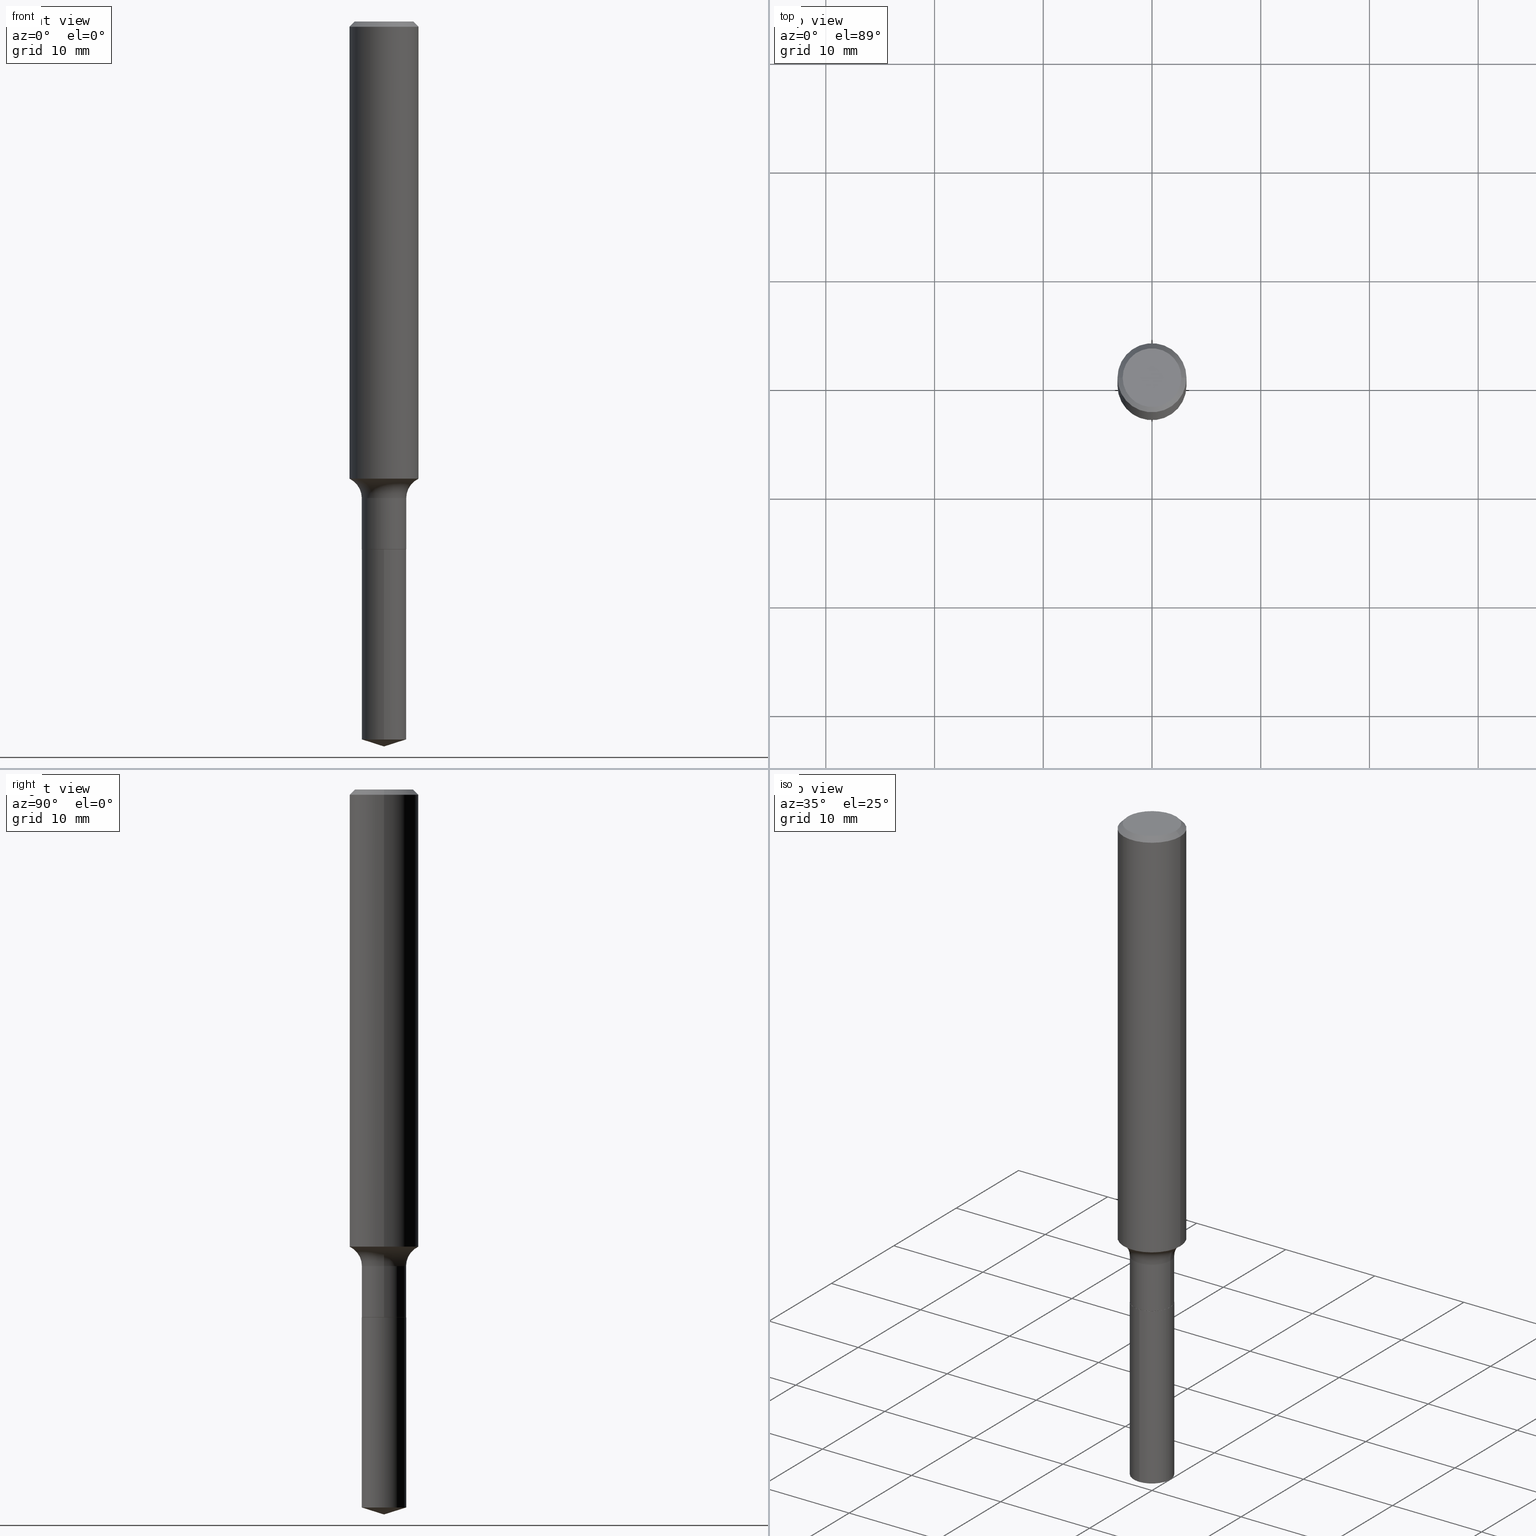
[diagram: canonical four-view strip — front | top / right | iso, engineering-drawing reading convention]
A machine part, canonical four-view strip (front | top / right | iso — engineering-drawing reading convention). The complete STEP part file that produces these views, byte-faithful:
ISO-10303-21;
HEADER;
FILE_DESCRIPTION (( 'STEP AP203' ),
    '1' );
FILE_NAME ('51279.STEP',
    '2024-04-19T12:47:51',
    ( '' ),
    ( '' ),
    'SwSTEP 2.0',
    'SolidWorks 2023',
    '' );
FILE_SCHEMA (( 'CONFIG_CONTROL_DESIGN' ));
ENDSEC;

DATA;
#1 = CARTESIAN_POINT ( 'NONE',  ( 4.673290888619796010E-29, -6.672220838529250908E-15, -1.910999999999999810 ) ) ;
#2 = CC_DESIGN_DATE_AND_TIME_ASSIGNMENT ( #225, #372, ( #159 ) ) ;
#3 = CIRCLE ( 'NONE', #288, 0.08050000000000000211 ) ;
#4 = AXIS2_PLACEMENT_3D ( 'NONE', #128, #276, #400 ) ;
#5 = LINE ( 'NONE', #7, #77 ) ;
#6 = ORIENTED_EDGE ( 'NONE', *, *, #418, .T. ) ;
#7 = CARTESIAN_POINT ( 'NONE',  ( 0.08000000000000000167, -7.230857852744151772E-15, -1.910999999999999810 ) ) ;
#8 = FACE_OUTER_BOUND ( 'NONE', #374, .T. ) ;
#9 = VERTEX_POINT ( 'NONE', #257 ) ;
#10 = AXIS2_PLACEMENT_3D ( 'NONE', #445, #409, #370 ) ;
#11 = CYLINDRICAL_SURFACE ( 'NONE', #298, 0.08050000000000000211 ) ;
#12 = EDGE_CURVE ( 'NONE', #9, #392, #176, .T. ) ;
#13 = CIRCLE ( 'NONE', #57, 0.07800000000000002764 ) ;
#14 = EDGE_LOOP ( 'NONE', ( #23, #61, #59, #177 ) ) ;
#15 = DIRECTION ( 'NONE',  ( -2.445468806185136877E-29, 3.491481338843145188E-15, 1.000000000000000000 ) ) ;
#16 = EDGE_CURVE ( 'NONE', #127, #90, #35, .T. ) ;
#17 = CARTESIAN_POINT ( 'NONE',  ( 4.673290888619796010E-29, -6.672220838529250908E-15, -1.910999999999999810 ) ) ;
#18 = EDGE_CURVE ( 'NONE', #340, #206, #194, .T. ) ;
#19 = FACE_OUTER_BOUND ( 'NONE', #173, .T. ) ;
#20 = AXIS2_PLACEMENT_3D ( 'NONE', #78, #153, #463 ) ;
#21 = ORIENTED_EDGE ( 'NONE', *, *, #426, .T. ) ;
#22 = DIRECTION ( 'NONE',  ( 1.000000000000000000, -6.982962677686266711E-15, 0.000000000000000000 ) ) ;
#23 = ORIENTED_EDGE ( 'NONE', *, *, #218, .T. ) ;
#24 = DIRECTION ( 'NONE',  ( -2.445468806185136877E-29, 3.491481338843145188E-15, 1.000000000000000000 ) ) ;
#25 = ORIENTED_EDGE ( 'NONE', *, *, #341, .T. ) ;
#26 = DIRECTION ( 'NONE',  ( -2.445468806185136597E-29, 3.491481338843145583E-15, 1.000000000000000000 ) ) ;
#27 = EDGE_LOOP ( 'NONE', ( #345, #63, #118, #252 ) ) ;
#28 = AXIS2_PLACEMENT_3D ( 'NONE', #261, #417, #301 ) ;
#29 = DATE_AND_TIME ( #62, #152 ) ;
#30 = ORIENTED_EDGE ( 'NONE', *, *, #182, .F. ) ;
#31 = APPROVAL_STATUS ( 'not_yet_approved' ) ;
#32 = DIRECTION ( 'NONE',  ( -0.7071067811866078578, 7.493145998870571886E-15, 0.7071067811864871766 ) ) ;
#33 = EDGE_CURVE ( 'NONE', #401, #440, #328, .T. ) ;
#34 = CARTESIAN_POINT ( 'NONE',  ( 4.673290888619796010E-29, -6.672220838529250908E-15, -1.910999999999999810 ) ) ;
#35 = CIRCLE ( 'NONE', #434, 0.08049999999999998823 ) ;
#36 = CIRCLE ( 'NONE', #255, 0.1250000000000000000 ) ;
#37 = MECHANICAL_CONTEXT ( 'NONE', #368, 'mechanical' ) ;
#38 = CARTESIAN_POINT ( 'NONE',  ( 4.673290888619796010E-29, -6.672220838529250908E-15, -1.910999999999999810 ) ) ;
#39 = PERSON_AND_ORGANIZATION ( #131, #312 ) ;
#40 = ORIENTED_EDGE ( 'NONE', *, *, #41, .T. ) ;
#41 = EDGE_CURVE ( 'NONE', #440, #401, #192, .T. ) ;
#42 = DIRECTION ( 'NONE',  ( 0.7071067811865450192, -7.319954787623246579E-15, -0.7071067811865500152 ) ) ;
#43 = ADVANCED_FACE ( 'NONE', ( #254 ), #469, .T. ) ;
#44 = VECTOR ( 'NONE', #42, 39.37007874015748143 ) ;
#45 = LINE ( 'NONE', #383, #208 ) ;
#46 = CARTESIAN_POINT ( 'NONE',  ( 4.672068154216703208E-29, -6.670475097859829405E-15, -1.910500000000000087 ) ) ;
#47 = CARTESIAN_POINT ( 'NONE',  ( 0.08000000000000000167, -7.230857852744151772E-15, -1.910999999999999810 ) ) ;
#48 = CIRCLE ( 'NONE', #184, 0.1062499999999999972 ) ;
#49 = DIRECTION ( 'NONE',  ( -2.445468806185136597E-29, 3.491481338843145583E-15, 1.000000000000000000 ) ) ;
#50 = ORIENTED_EDGE ( 'NONE', *, *, #92, .T. ) ;
#51 = LINE ( 'NONE', #474, #273 ) ;
#52 = PRODUCT_RELATED_PRODUCT_CATEGORY ( 'detail', '', ( #367 ) ) ;
#53 = CARTESIAN_POINT ( 'NONE',  ( 4.673290888619796010E-29, -6.672220838529250908E-15, -1.910999999999999810 ) ) ;
#54 = ORIENTED_EDGE ( 'NONE', *, *, #16, .F. ) ;
#55 = DIRECTION ( 'NONE',  ( -2.445468806185136597E-29, 3.491481338843145583E-15, 1.000000000000000000 ) ) ;
#56 = VERTEX_POINT ( 'NONE', #376 ) ;
#57 = AXIS2_PLACEMENT_3D ( 'NONE', #313, #472, #351 ) ;
#58 = DIRECTION ( 'NONE',  ( -2.445468806185136597E-29, 3.491481338843145583E-15, 1.000000000000000000 ) ) ;
#59 = ORIENTED_EDGE ( 'NONE', *, *, #12, .F. ) ;
#60 = DIRECTION ( 'NONE',  ( 1.000000000000000000, -6.982962677686259611E-15, 0.000000000000000000 ) ) ;
#61 = ORIENTED_EDGE ( 'NONE', *, *, #270, .T. ) ;
#62 = CALENDAR_DATE ( 2024, 19, 4 ) ;
#63 = ORIENTED_EDGE ( 'NONE', *, *, #16, .T. ) ;
#64 = AXIS2_PLACEMENT_3D ( 'NONE', #278, #58, #317 ) ;
#65 = PERSON_AND_ORGANIZATION_ROLE ( 'classification_officer' ) ;
#66 = LINE ( 'NONE', #333, #44 ) ;
#67 = APPROVAL_ROLE ( '' ) ;
#68 = DIRECTION ( 'NONE',  ( -6.982962677686266711E-15, -1.000000000000000000, 3.393599992129519526E-15 ) ) ;
#69 = PERSON_AND_ORGANIZATION ( #131, #312 ) ;
#70 = DIRECTION ( 'NONE',  ( 1.000000000000000000, -6.982962677686259611E-15, 0.000000000000000000 ) ) ;
#71 = AXIS2_PLACEMENT_3D ( 'NONE', #46, #198, #348 ) ;
#72 = APPROVAL_PERSON_ORGANIZATION ( #455, #109, #490 ) ;
#73 = DIRECTION ( 'NONE',  ( 1.000000000000000000, -6.982962677686267499E-15, 0.000000000000000000 ) ) ;
#74 = ADVANCED_FACE ( 'NONE', ( #287 ), #263, .T. ) ;
#75 = DIRECTION ( 'NONE',  ( -2.445468806185136597E-29, 3.491481338843145583E-15, 1.000000000000000000 ) ) ;
#76 = CARTESIAN_POINT ( 'NONE',  ( 4.220390065714308775E-29, -6.025598494575499954E-15, -1.725800000000000001 ) ) ;
#77 = VECTOR ( 'NONE', #343, 39.37007874015748143 ) ;
#78 = CARTESIAN_POINT ( 'NONE',  ( 4.585254011597163874E-31, -6.546527510330944066E-17, -0.01875000000000013461 ) ) ;
#79 = ORIENTED_EDGE ( 'NONE', *, *, #98, .F. ) ;
#80 = DIRECTION ( 'NONE',  ( -6.982962677686266711E-15, -1.000000000000000000, 3.393599992129519526E-15 ) ) ;
#81 = DIRECTION ( 'NONE',  ( -2.444714620977216866E-29, 3.492561374986442879E-15, 1.000000000000000000 ) ) ;
#82 = ADVANCED_FACE ( 'NONE', ( #335 ), #133, .T. ) ;
#83 = CARTESIAN_POINT ( 'NONE',  ( 4.673290888619796010E-29, -6.672220838529250908E-15, -1.910999999999999810 ) ) ;
#84 = CARTESIAN_POINT ( 'NONE',  ( -0.1062499999999999972, 7.746724220558198188E-16, 6.505936120465012444E-18 ) ) ;
#85 = ORIENTED_EDGE ( 'NONE', *, *, #453, .F. ) ;
#86 = ORIENTED_EDGE ( 'NONE', *, *, #250, .F. ) ;
#87 = EDGE_CURVE ( 'NONE', #111, #179, #166, .T. ) ;
#88 = DIRECTION ( 'NONE',  ( 1.000000000000000000, -6.982962677686266711E-15, 4.876176775795935232E-29 ) ) ;
#89 = CONICAL_SURFACE ( 'NONE', #387, 0.1250000000000000000, 0.7853981633974447263 ) ;
#90 = VERTEX_POINT ( 'NONE', #457 ) ;
#91 = VECTOR ( 'NONE', #274, 39.37007874015748143 ) ;
#92 = EDGE_CURVE ( 'NONE', #431, #134, #48, .T. ) ;
#93 = DIRECTION ( 'NONE',  ( -1.000000000000000000, 6.982962677686265922E-15, -4.876176775795935793E-29 ) ) ;
#94 = ORIENTED_EDGE ( 'NONE', *, *, #163, .F. ) ;
#95 = CARTESIAN_POINT ( 'NONE',  ( 6.420283652016083356E-29, -9.163845711199730413E-15, -2.625000000000000000 ) ) ;
#96 = ORIENTED_EDGE ( 'NONE', *, *, #129, .T. ) ;
#97 = COORDINATED_UNIVERSAL_TIME_OFFSET ( 5, 0, .BEHIND. ) ;
#98 = EDGE_CURVE ( 'NONE', #56, #480, #377, .T. ) ;
#99 = CARTESIAN_POINT ( 'NONE',  ( -0.1250000000000002498, -4.891481209924620531E-15, -1.655360309483927761 ) ) ;
#100 = AXIS2_PLACEMENT_3D ( 'NONE', #1, #188, #483 ) ;
#101 = CC_DESIGN_APPROVAL ( #109, ( #430 ) ) ;
#102 = CARTESIAN_POINT ( 'NONE',  ( 4.672068154216703208E-29, -6.670475097859829405E-15, -1.910500000000000087 ) ) ;
#103 = COORDINATED_UNIVERSAL_TIME_OFFSET ( 5, 0, .BEHIND. ) ;
#104 = CARTESIAN_POINT ( 'NONE',  ( -0.08000000000000000167, -6.103786649921171044E-15, -1.910999999999999810 ) ) ;
#105 = EDGE_CURVE ( 'NONE', #179, #111, #158, .T. ) ;
#106 = CARTESIAN_POINT ( 'NONE',  ( 0.000000000000000000, 0.000000000000000000, 0.000000000000000000 ) ) ;
#107 = CARTESIAN_POINT ( 'NONE',  ( -0.08049999999999998823, -5.776049893930784705E-15, -1.910500000000000087 ) ) ;
#108 = VECTOR ( 'NONE', #424, 39.37007874015748143 ) ;
#109 = APPROVAL ( #31, 'UNSPECIFIED' ) ;
#110 =( NAMED_UNIT ( * ) PLANE_ANGLE_UNIT ( ) SI_UNIT ( $, .RADIAN. ) );
#111 = VERTEX_POINT ( 'NONE', #99 ) ;
#112 = LINE ( 'NONE', #421, #338 ) ;
#113 = DIRECTION ( 'NONE',  ( 2.445468806185136597E-29, -3.491481338843145583E-15, -1.000000000000000000 ) ) ;
#114 = EDGE_CURVE ( 'NONE', #314, #480, #227, .T. ) ;
#115 = AXIS2_PLACEMENT_3D ( 'NONE', #230, #190, #70 ) ;
#116 =( GEOMETRIC_REPRESENTATION_CONTEXT ( 3 ) GLOBAL_UNCERTAINTY_ASSIGNED_CONTEXT ( ( #249 ) ) GLOBAL_UNIT_ASSIGNED_CONTEXT ( ( #365, #110, #450 ) ) REPRESENTATION_CONTEXT ( 'NONE', 'WORKASPACE' ) );
#117 = FACE_OUTER_BOUND ( 'NONE', #14, .T. ) ;
#118 = ORIENTED_EDGE ( 'NONE', *, *, #280, .T. ) ;
#119 = CARTESIAN_POINT ( 'NONE',  ( 4.585254011597163874E-31, -6.546527510330944066E-17, -0.01875000000000013461 ) ) ;
#120 = ORIENTED_EDGE ( 'NONE', *, *, #187, .F. ) ;
#121 = DIRECTION ( 'NONE',  ( 1.000000000000000000, -6.982962677686266711E-15, 4.875930095424100059E-29 ) ) ;
#122 = EDGE_CURVE ( 'NONE', #134, #303, #66, .T. ) ;
#123 = CLOSED_SHELL ( 'NONE', ( #74, #309, #390, #334, #325, #203, #231, #464, #149, #467, #385, #43 ) ) ;
#124 = CARTESIAN_POINT ( 'NONE',  ( 0.1250000000000001110, -8.728703347107841277E-16, 6.095220969744924646E-30 ) ) ;
#125 = ORIENTED_EDGE ( 'NONE', *, *, #163, .T. ) ;
#126 = CARTESIAN_POINT ( 'NONE',  ( 4.585254011597163874E-31, -6.546527510330944066E-17, -0.01875000000000013461 ) ) ;
#127 = VERTEX_POINT ( 'NONE', #107 ) ;
#128 = CARTESIAN_POINT ( 'NONE',  ( 4.220390065714308775E-29, -6.025598494575499954E-15, -1.725800000000000001 ) ) ;
#129 = EDGE_CURVE ( 'NONE', #340, #127, #449, .T. ) ;
#130 = EDGE_LOOP ( 'NONE', ( #473, #96, #248, #94 ) ) ;
#131 = PERSON ( 'UNSPECIFIED', 'UNSPECIFIED', 'UNSPECIFIED', ('UNSPECIFIED'), ('UNSPECIFIED'), ('UNSPECIFIED') ) ;
#132 = PLANE ( 'NONE',  #185 ) ;
#133 = CONICAL_SURFACE ( 'NONE', #217, 124.8659371009125749, 1.265363707695885909 ) ;
#134 = VERTEX_POINT ( 'NONE', #292 ) ;
#135 = AXIS2_PLACEMENT_3D ( 'NONE', #17, #164, #60 ) ;
#136 = ADVANCED_FACE ( 'NONE', ( #181 ), #327, .F. ) ;
#137 = LINE ( 'NONE', #175, #209 ) ;
#138 = ORIENTED_EDGE ( 'NONE', *, *, #12, .T. ) ;
#139 = EDGE_CURVE ( 'NONE', #431, #381, #232, .T. ) ;
#140 = DIRECTION ( 'NONE',  ( 1.000000000000000000, -6.982962677686267499E-15, 0.000000000000000000 ) ) ;
#141 = APPLICATION_PROTOCOL_DEFINITION ( 'international standard', 'config_control_design', 1994, #368 ) ;
#142 = DIRECTION ( 'NONE',  ( -2.445468806185136597E-29, 3.491481338843145583E-15, 1.000000000000000000 ) ) ;
#143 = TOROIDAL_SURFACE ( 'NONE', #444, 0.1584999999999999742, 0.07800000000000002764 ) ;
#144 = CIRCLE ( 'NONE', #135, 0.08000000000000000167 ) ;
#145 = DATE_AND_TIME ( #186, #291 ) ;
#146 = CARTESIAN_POINT ( 'NONE',  ( 4.048131999839919317E-29, -5.779659629624748130E-15, -1.655360309483927761 ) ) ;
#147 = APPROVAL_STATUS ( 'not_yet_approved' ) ;
#148 = DIRECTION ( 'NONE',  ( -2.445468806185136597E-29, 3.491481338843145583E-15, 1.000000000000000000 ) ) ;
#149 = ADVANCED_FACE ( 'NONE', ( #235 ), #89, .T. ) ;
#150 = ORIENTED_EDGE ( 'NONE', *, *, #18, .F. ) ;
#151 = CIRCLE ( 'NONE', #20, 0.1250000000000000000 ) ;
#152 = LOCAL_TIME ( 8, 47, 51.00000000000000000, #103 ) ;
#153 = DIRECTION ( 'NONE',  ( -2.445468806185136597E-29, 3.491481338843145583E-15, 1.000000000000000000 ) ) ;
#154 = ADVANCED_FACE ( 'NONE', ( #191 ), #262, .T. ) ;
#155 = DIRECTION ( 'NONE',  ( 2.445468806185136597E-29, -3.491481338843145583E-15, -1.000000000000000000 ) ) ;
#156 = DIRECTION ( 'NONE',  ( -2.445468806185136597E-29, 3.491481338843145583E-15, 1.000000000000000000 ) ) ;
#157 = ORIENTED_EDGE ( 'NONE', *, *, #438, .T. ) ;
#158 = CIRCLE ( 'NONE', #396, 0.1250000000000001943 ) ;
#159 = SECURITY_CLASSIFICATION ( '', '', #407 ) ;
#160 = CARTESIAN_POINT ( 'NONE',  ( 4.673290888619796010E-29, -6.672220838529250908E-15, -1.910999999999999810 ) ) ;
#161 = ORIENTED_EDGE ( 'NONE', *, *, #33, .T. ) ;
#162 = DIRECTION ( 'NONE',  ( -2.444714620977216866E-29, 3.492561374986442879E-15, 1.000000000000000000 ) ) ;
#163 = EDGE_CURVE ( 'NONE', #206, #90, #5, .T. ) ;
#164 = DIRECTION ( 'NONE',  ( -2.445468806185136597E-29, 3.491481338843145583E-15, 1.000000000000000000 ) ) ;
#165 = ORIENTED_EDGE ( 'NONE', *, *, #442, .F. ) ;
#166 = CIRCLE ( 'NONE', #10, 0.1250000000000001943 ) ;
#167 = APPLICATION_CONTEXT ( 'configuration controlled 3d designs of mechanical parts and assemblies' ) ;
#168 = DIRECTION ( 'NONE',  ( -2.445468806185136597E-29, 3.491481338843145583E-15, 1.000000000000000000 ) ) ;
#169 = ORIENTED_EDGE ( 'NONE', *, *, #442, .T. ) ;
#170 = DIRECTION ( 'NONE',  ( 1.000000000000000000, -6.982962677686267499E-15, 0.000000000000000000 ) ) ;
#171 = EDGE_LOOP ( 'NONE', ( #85, #277, #395 ) ) ;
#172 = LINE ( 'NONE', #95, #264 ) ;
#173 = EDGE_LOOP ( 'NONE', ( #165, #466, #404, #355 ) ) ;
#174 = CLOSED_SHELL ( 'NONE', ( #224, #246, #82, #154, #136 ) ) ;
#175 = CARTESIAN_POINT ( 'NONE',  ( -0.1250000000000001110, 8.881784197001260212E-16, -6.148668862818637832E-30 ) ) ;
#176 = CIRCLE ( 'NONE', #237, 0.08049999999999998823 ) ;
#177 = ORIENTED_EDGE ( 'NONE', *, *, #280, .F. ) ;
#178 = DIRECTION ( 'NONE',  ( 0.000000000000000000, 0.000000000000000000, 1.000000000000000000 ) ) ;
#179 = VERTEX_POINT ( 'NONE', #196 ) ;
#180 = PERSON_AND_ORGANIZATION ( #131, #312 ) ;
#181 = FACE_OUTER_BOUND ( 'NONE', #316, .T. ) ;
#182 = EDGE_CURVE ( 'NONE', #480, #401, #112, .T. ) ;
#183 = CARTESIAN_POINT ( 'NONE',  ( -8.982978999708975710E-28, 1.283365066777793659E-13, 36.74507874015748143 ) ) ;
#184 = AXIS2_PLACEMENT_3D ( 'NONE', #416, #75, #491 ) ;
#185 = AXIS2_PLACEMENT_3D ( 'NONE', #282, #436, #93 ) ;
#186 = CALENDAR_DATE ( 2024, 19, 4 ) ;
#187 = EDGE_CURVE ( 'NONE', #303, #381, #151, .T. ) ;
#188 = DIRECTION ( 'NONE',  ( -2.445468806185136597E-29, 3.491481338843145583E-15, 1.000000000000000000 ) ) ;
#189 = PERSON_AND_ORGANIZATION ( #131, #312 ) ;
#190 = DIRECTION ( 'NONE',  ( -2.445468806185136597E-29, 3.491481338843145583E-15, 1.000000000000000000 ) ) ;
#191 = FACE_OUTER_BOUND ( 'NONE', #347, .T. ) ;
#192 = CIRCLE ( 'NONE', #200, 0.08050000000000000211 ) ;
#193 = CC_DESIGN_PERSON_AND_ORGANIZATION_ASSIGNMENT ( #326, #484, ( #414 ) ) ;
#194 = CIRCLE ( 'NONE', #371, 0.08000000000000000167 ) ;
#195 = LOCAL_TIME ( 8, 47, 51.00000000000000000, #289 ) ;
#196 = CARTESIAN_POINT ( 'NONE',  ( 0.1250000000000002498, -6.652529964335533835E-15, -1.655360309483927761 ) ) ;
#197 = DIRECTION ( 'NONE',  ( 1.000000000000000000, -6.982962677686265133E-15, 4.883557194083112901E-29 ) ) ;
#198 = DIRECTION ( 'NONE',  ( -2.445468806185136597E-29, 3.491481338843145583E-15, 1.000000000000000000 ) ) ;
#199 = ORIENTED_EDGE ( 'NONE', *, *, #187, .T. ) ;
#200 = AXIS2_PLACEMENT_3D ( 'NONE', #34, #412, #68 ) ;
#201 = CIRCLE ( 'NONE', #487, 0.07800000000000002764 ) ;
#202 = FACE_OUTER_BOUND ( 'NONE', #27, .T. ) ;
#203 = ADVANCED_FACE ( 'NONE', ( #202 ), #268, .T. ) ;
#204 = DIRECTION ( 'NONE',  ( 1.000000000000000000, -6.982962677686265922E-15, 4.876176775795935793E-29 ) ) ;
#205 = CARTESIAN_POINT ( 'NONE',  ( -0.1584999999999999742, -4.899388258395741342E-15, -1.725800000000000001 ) ) ;
#206 = VERTEX_POINT ( 'NONE', #47 ) ;
#207 = ADVANCED_BREP_SHAPE_REPRESENTATION ( '51279', ( #447, #428, #471 ), #116 ) ;
#208 = VECTOR ( 'NONE', #15, 39.37007874015748143 ) ;
#209 = VECTOR ( 'NONE', #24, 39.37007874015748143 ) ;
#210 = FACE_OUTER_BOUND ( 'NONE', #241, .T. ) ;
#211 = ORIENTED_EDGE ( 'NONE', *, *, #438, .F. ) ;
#212 = DIRECTION ( 'NONE',  ( -2.445468806185136597E-29, 3.491481338843145583E-15, 1.000000000000000000 ) ) ;
#213 = ORIENTED_EDGE ( 'NONE', *, *, #413, .F. ) ;
#214 = CYLINDRICAL_SURFACE ( 'NONE', #456, 0.1250000000000001110 ) ;
#215 = ORIENTED_EDGE ( 'NONE', *, *, #122, .T. ) ;
#216 = LENGTH_MEASURE_WITH_UNIT ( LENGTH_MEASURE( 0.02539999999999999897 ), #488 );
#217 = AXIS2_PLACEMENT_3D ( 'NONE', #183, #331, #489 ) ;
#218 = EDGE_CURVE ( 'NONE', #90, #127, #311, .T. ) ;
#219 = EDGE_LOOP ( 'NONE', ( #410, #352, #125, #54 ) ) ;
#220 = CONICAL_SURFACE ( 'NONE', #362, 0.1250000000000000000, 0.7853981633974447263 ) ;
#221 = DIRECTION ( 'NONE',  ( -2.445468806185136597E-29, 3.491481338843145583E-15, 1.000000000000000000 ) ) ;
#222 = COORDINATED_UNIVERSAL_TIME_OFFSET ( 5, 0, .BEHIND. ) ;
#223 = ORIENTED_EDGE ( 'NONE', *, *, #41, .F. ) ;
#224 = ADVANCED_FACE ( 'NONE', ( #342 ), #11, .T. ) ;
#225 = DATE_AND_TIME ( #256, #195 ) ;
#226 = DIRECTION ( 'NONE',  ( -2.444714620977216866E-29, 3.492561374986442879E-15, 1.000000000000000000 ) ) ;
#227 = CIRCLE ( 'NONE', #353, 0.08050000000000000211 ) ;
#228 = CC_DESIGN_SECURITY_CLASSIFICATION ( #159, ( #414 ) ) ;
#229 = DIRECTION ( 'NONE',  ( 1.000000000000000000, -6.982962677686259611E-15, 0.000000000000000000 ) ) ;
#230 = CARTESIAN_POINT ( 'NONE',  ( 4.673290888619796010E-29, -6.672220838529250908E-15, -1.910999999999999810 ) ) ;
#231 = ADVANCED_FACE ( 'NONE', ( #461 ), #143, .F. ) ;
#232 = LINE ( 'NONE', #344, #108 ) ;
#233 = AXIS2_PLACEMENT_3D ( 'NONE', #423, #386, #300 ) ;
#234 = CARTESIAN_POINT ( 'NONE',  ( 6.356766475486046114E-29, -9.077263030354262990E-15, -2.599618447495241735 ) ) ;
#235 = FACE_OUTER_BOUND ( 'NONE', #360, .T. ) ;
#236 = DIRECTION ( 'NONE',  ( -6.982962677686266711E-15, -1.000000000000000000, 6.787199984259039052E-15 ) ) ;
#237 = AXIS2_PLACEMENT_3D ( 'NONE', #260, #415, #297 ) ;
#238 = LOCAL_TIME ( 8, 47, 51.00000000000000000, #97 ) ;
#239 = DIRECTION ( 'NONE',  ( -2.444714620977216866E-29, 3.492561374986442879E-15, 1.000000000000000000 ) ) ;
#240 = FACE_OUTER_BOUND ( 'NONE', #477, .T. ) ;
#241 = EDGE_LOOP ( 'NONE', ( #279, #364, #21, #211 ) ) ;
#242 = ORIENTED_EDGE ( 'NONE', *, *, #299, .T. ) ;
#243 = TOROIDAL_SURFACE ( 'NONE', #4, 0.1584999999999999742, 0.07800000000000002764 ) ;
#244 = DIRECTION ( 'NONE',  ( 1.000000000000000000, -6.982962677686266711E-15, 4.876176775795935232E-29 ) ) ;
#245 = ORIENTED_EDGE ( 'NONE', *, *, #139, .F. ) ;
#246 = ADVANCED_FACE ( 'NONE', ( #8 ), #272, .T. ) ;
#247 = CYLINDRICAL_SURFACE ( 'NONE', #305, 0.08049999999999998823 ) ;
#248 = ORIENTED_EDGE ( 'NONE', *, *, #218, .F. ) ;
#249 = UNCERTAINTY_MEASURE_WITH_UNIT (LENGTH_MEASURE( 1.000000000000000082E-05 ), #365, 'distance_accuracy_value', 'NONE');
#250 = EDGE_CURVE ( 'NONE', #480, #314, #3, .T. ) ;
#251 = DIRECTION ( 'NONE',  ( -2.438088387897960049E-29, 3.491481338843145188E-15, 1.000000000000000000 ) ) ;
#252 = ORIENTED_EDGE ( 'NONE', *, *, #426, .F. ) ;
#253 = DIRECTION ( 'NONE',  ( 1.000000000000000000, 0.000000000000000000, 0.000000000000000000 ) ) ;
#254 = FACE_OUTER_BOUND ( 'NONE', #219, .T. ) ;
#255 = AXIS2_PLACEMENT_3D ( 'NONE', #126, #26, #22 ) ;
#256 = CALENDAR_DATE ( 2024, 19, 4 ) ;
#257 = CARTESIAN_POINT ( 'NONE',  ( 0.08049999999999998823, -6.587726990129244613E-15, -1.725800000000000001 ) ) ;
#258 = CARTESIAN_POINT ( 'NONE',  ( 4.673290888619796010E-29, -6.672220838529250908E-15, -1.910999999999999810 ) ) ;
#259 = DIRECTION ( 'NONE',  ( 6.982962677686265922E-15, 1.000000000000000000, -3.492561374986442485E-15 ) ) ;
#260 = CARTESIAN_POINT ( 'NONE',  ( 4.220390065714308775E-29, -6.025598494575499954E-15, -1.725800000000000001 ) ) ;
#261 = CARTESIAN_POINT ( 'NONE',  ( 0.000000000000000000, 0.000000000000000000, 0.000000000000000000 ) ) ;
#262 = CYLINDRICAL_SURFACE ( 'NONE', #454, 0.08050000000000000211 ) ;
#263 = CONICAL_SURFACE ( 'NONE', #115, 0.08000000000000000167, 0.7853981633975336552 ) ;
#264 = VECTOR ( 'NONE', #432, 39.37007874015748143 ) ;
#265 = SHAPE_DEFINITION_REPRESENTATION ( #406, #207 ) ;
#266 = DIRECTION ( 'NONE',  ( -2.444714620977216866E-29, 3.492561374986442485E-15, 1.000000000000000000 ) ) ;
#267 = ORIENTED_EDGE ( 'NONE', *, *, #446, .F. ) ;
#268 = CYLINDRICAL_SURFACE ( 'NONE', #28, 0.08049999999999998823 ) ;
#269 = ORIENTED_EDGE ( 'NONE', *, *, #33, .F. ) ;
#270 = EDGE_CURVE ( 'NONE', #127, #392, #307, .T. ) ;
#271 = CARTESIAN_POINT ( 'NONE',  ( 4.585254011597163874E-31, -6.546527510330944066E-17, -0.01875000000000013461 ) ) ;
#272 = CONICAL_SURFACE ( 'NONE', #233, 124.8659371009125749, 1.265363707695885909 ) ;
#273 = VECTOR ( 'NONE', #359, 39.37007874015748143 ) ;
#274 = DIRECTION ( 'NONE',  ( -2.445468806185136877E-29, 3.491481338843145188E-15, 1.000000000000000000 ) ) ;
#275 = ORIENTED_EDGE ( 'NONE', *, *, #453, .T. ) ;
#276 = DIRECTION ( 'NONE',  ( -2.445468806185136597E-29, 3.491481338843145583E-15, 1.000000000000000000 ) ) ;
#277 = ORIENTED_EDGE ( 'NONE', *, *, #98, .T. ) ;
#278 = CARTESIAN_POINT ( 'NONE',  ( 0.000000000000000000, 0.000000000000000000, 0.000000000000000000 ) ) ;
#279 = ORIENTED_EDGE ( 'NONE', *, *, #87, .F. ) ;
#280 = EDGE_CURVE ( 'NONE', #90, #9, #45, .T. ) ;
#281 = AXIS2_PLACEMENT_3D ( 'NONE', #258, #452, #259 ) ;
#282 = CARTESIAN_POINT ( 'NONE',  ( -7.955031918821649840E-47, 1.135767727816383790E-32, 3.252968060235157457E-18 ) ) ;
#283 = EDGE_LOOP ( 'NONE', ( #427, #6, #269, #30 ) ) ;
#284 = CARTESIAN_POINT ( 'NONE',  ( 4.220390065714308775E-29, -6.025598494575499954E-15, -1.725800000000000001 ) ) ;
#285 = ORIENTED_EDGE ( 'NONE', *, *, #418, .F. ) ;
#286 = PERSON_AND_ORGANIZATION ( #131, #312 ) ;
#287 = FACE_OUTER_BOUND ( 'NONE', #130, .T. ) ;
#288 = AXIS2_PLACEMENT_3D ( 'NONE', #234, #239, #236 ) ;
#289 = COORDINATED_UNIVERSAL_TIME_OFFSET ( 5, 0, .BEHIND. ) ;
#290 = CC_DESIGN_PERSON_AND_ORGANIZATION_ASSIGNMENT ( #286, #411, ( #414 ) ) ;
#291 = LOCAL_TIME ( 8, 47, 51.00000000000000000, #222 ) ;
#292 = CARTESIAN_POINT ( 'NONE',  ( 0.1062499999999999972, -8.259777185439879685E-16, 6.505936120475796882E-18 ) ) ;
#293 = DATE_AND_TIME ( #402, #238 ) ;
#294 = CARTESIAN_POINT ( 'NONE',  ( 6.356766475486046114E-29, -9.077263030354262990E-15, -2.599618447495241735 ) ) ;
#295 = APPROVAL_ROLE ( '' ) ;
#296 = DIRECTION ( 'NONE',  ( -6.659769872151619467E-15, -0.9537169507482249342, 0.3007057995042792808 ) ) ;
#297 = DIRECTION ( 'NONE',  ( 1.000000000000000000, -6.982962677686267499E-15, 0.000000000000000000 ) ) ;
#298 = AXIS2_PLACEMENT_3D ( 'NONE', #160, #162, #80 ) ;
#299 = EDGE_CURVE ( 'NONE', #134, #431, #486, .T. ) ;
#300 = DIRECTION ( 'NONE',  ( -6.982962677686265133E-15, -1.000000000000000000, 3.500519750498774246E-15 ) ) ;
#301 = DIRECTION ( 'NONE',  ( 1.000000000000000000, -6.982962677686266711E-15, 4.876176775795935232E-29 ) ) ;
#302 = CARTESIAN_POINT ( 'NONE',  ( 0.1250000000000000000, -9.383356098140928781E-16, -0.01875000000000013461 ) ) ;
#303 = VERTEX_POINT ( 'NONE', #302 ) ;
#304 = VECTOR ( 'NONE', #32, 39.37007874015748143 ) ;
#305 = AXIS2_PLACEMENT_3D ( 'NONE', #349, #168, #244 ) ;
#306 = COORDINATED_UNIVERSAL_TIME_OFFSET ( 5, 0, .BEHIND. ) ;
#307 = LINE ( 'NONE', #389, #420 ) ;
#308 = EDGE_LOOP ( 'NONE', ( #441, #215, #199, #245 ) ) ;
#309 = ADVANCED_FACE ( 'NONE', ( #458 ), #220, .T. ) ;
#310 = FACE_OUTER_BOUND ( 'NONE', #470, .T. ) ;
#311 = CIRCLE ( 'NONE', #71, 0.08049999999999998823 ) ;
#312 = ORGANIZATION ( 'UNSPECIFIED', 'UNSPECIFIED', '' ) ;
#313 = CARTESIAN_POINT ( 'NONE',  ( 0.1584999999999999742, -7.132398078988774237E-15, -1.725800000000000001 ) ) ;
#314 = VERTEX_POINT ( 'NONE', #460 ) ;
#315 = CYLINDRICAL_SURFACE ( 'NONE', #64, 0.1250000000000001110 ) ;
#316 = EDGE_LOOP ( 'NONE', ( #161, #40 ) ) ;
#317 = DIRECTION ( 'NONE',  ( 1.000000000000000000, -6.982962677686266711E-15, 4.876176775795935232E-29 ) ) ;
#318 = APPROVAL ( #369, 'UNSPECIFIED' ) ;
#319 = EDGE_LOOP ( 'NONE', ( #50, #242 ) ) ;
#320 = VECTOR ( 'NONE', #296, 39.37007874015748854 ) ;
#321 = DIRECTION ( 'NONE',  ( 7.105427357601001859E-15, 1.000000000000000000, -3.491481338843145583E-15 ) ) ;
#322 = ORIENTED_EDGE ( 'NONE', *, *, #114, .T. ) ;
#323 = PERSON_AND_ORGANIZATION_ROLE ( 'design_owner' ) ;
#324 = DIRECTION ( 'NONE',  ( -6.982962677686266711E-15, -1.000000000000000000, 3.393599992129519526E-15 ) ) ;
#325 = ADVANCED_FACE ( 'NONE', ( #117 ), #247, .T. ) ;
#326 = PERSON_AND_ORGANIZATION ( #131, #312 ) ;
#327 = PLANE ( 'NONE',  #281 ) ;
#328 = CIRCLE ( 'NONE', #405, 0.08050000000000000211 ) ;
#329 = APPLICATION_PROTOCOL_DEFINITION ( 'international standard', 'config_control_design', 1994, #167 ) ;
#330 = AXIS2_PLACEMENT_3D ( 'NONE', #53, #251, #204 ) ;
#331 = DIRECTION ( 'NONE',  ( -2.444714620977216866E-29, 3.492561374986442879E-15, 1.000000000000000000 ) ) ;
#332 = PERSON_AND_ORGANIZATION ( #131, #312 ) ;
#333 = CARTESIAN_POINT ( 'NONE',  ( 0.1250000000000000000, -9.230275248247509846E-16, -0.01875000000000013461 ) ) ;
#334 = ADVANCED_FACE ( 'NONE', ( #210 ), #243, .F. ) ;
#335 = FACE_OUTER_BOUND ( 'NONE', #171, .T. ) ;
#336 = CC_DESIGN_PERSON_AND_ORGANIZATION_ASSIGNMENT ( #39, #323, ( #367 ) ) ;
#337 = CARTESIAN_POINT ( 'NONE',  ( -1.591006383764329968E-46, 2.271535455632767580E-32, 6.505936120470314915E-18 ) ) ;
#338 = VECTOR ( 'NONE', #266, 39.37007874015748143 ) ;
#339 = CC_DESIGN_APPROVAL ( #318, ( #414 ) ) ;
#340 = VERTEX_POINT ( 'NONE', #439 ) ;
#341 = EDGE_CURVE ( 'NONE', #381, #303, #36, .T. ) ;
#342 = FACE_OUTER_BOUND ( 'NONE', #283, .T. ) ;
#343 = DIRECTION ( 'NONE',  ( 0.7071067811866078578, -2.468850131082888544E-15, 0.7071067811864871766 ) ) ;
#344 = CARTESIAN_POINT ( 'NONE',  ( -0.1250000000000000000, 8.074050596074738982E-16, -0.01875000000000013461 ) ) ;
#345 = ORIENTED_EDGE ( 'NONE', *, *, #270, .F. ) ;
#346 = APPROVAL_PERSON_ORGANIZATION ( #332, #403, #295 ) ;
#347 = EDGE_LOOP ( 'NONE', ( #285, #322, #475, #223 ) ) ;
#348 = DIRECTION ( 'NONE',  ( 1.000000000000000000, -6.982962677686267499E-15, 0.000000000000000000 ) ) ;
#349 = CARTESIAN_POINT ( 'NONE',  ( 0.000000000000000000, 0.000000000000000000, 0.000000000000000000 ) ) ;
#350 = CC_DESIGN_PERSON_AND_ORGANIZATION_ASSIGNMENT ( #69, #65, ( #159 ) ) ;
#351 = DIRECTION ( 'NONE',  ( 1.000000000000000000, -6.982962677686268288E-15, 0.000000000000000000 ) ) ;
#352 = ORIENTED_EDGE ( 'NONE', *, *, #18, .T. ) ;
#353 = AXIS2_PLACEMENT_3D ( 'NONE', #294, #226, #408 ) ;
#354 = CARTESIAN_POINT ( 'NONE',  ( -0.1250000000000000000, -2.034384032663901827E-15, -0.01875000000000013461 ) ) ;
#355 = ORIENTED_EDGE ( 'NONE', *, *, #341, .F. ) ;
#356 = CC_DESIGN_PERSON_AND_ORGANIZATION_ASSIGNMENT ( #189, #492, ( #430 ) ) ;
#357 = CARTESIAN_POINT ( 'NONE',  ( 5.719869022869443651E-16, 0.08049999999999332689, -1.911000000000000254 ) ) ;
#358 = ORIENTED_EDGE ( 'NONE', *, *, #139, .T. ) ;
#359 = DIRECTION ( 'NONE',  ( -2.444714620977216866E-29, 3.492561374986442485E-15, 1.000000000000000000 ) ) ;
#360 = EDGE_LOOP ( 'NONE', ( #433, #393, #358, #25 ) ) ;
#361 = DESIGN_CONTEXT ( 'detailed design', #167, 'design' ) ;
#362 = AXIS2_PLACEMENT_3D ( 'NONE', #271, #155, #380 ) ;
#363 = APPROVAL_DATE_TIME ( #145, #109 ) ;
#364 = ORIENTED_EDGE ( 'NONE', *, *, #446, .T. ) ;
#365 =( CONVERSION_BASED_UNIT ( 'INCH', #216 ) LENGTH_UNIT ( ) NAMED_UNIT ( #451 ) );
#366 = DIRECTION ( 'NONE',  ( -2.444714620977216866E-29, 3.492561374986442879E-15, 1.000000000000000000 ) ) ;
#367 = PRODUCT ( '51279', '51279', '', ( #37 ) ) ;
#368 = APPLICATION_CONTEXT ( 'configuration controlled 3d designs of mechanical parts and assemblies' ) ;
#369 = APPROVAL_STATUS ( 'not_yet_approved' ) ;
#370 = DIRECTION ( 'NONE',  ( 1.000000000000000000, -6.982962677686267499E-15, 0.000000000000000000 ) ) ;
#371 = AXIS2_PLACEMENT_3D ( 'NONE', #485, #148, #229 ) ;
#372 = DATE_TIME_ROLE ( 'classification_date' ) ;
#373 = AXIS2_PLACEMENT_3D ( 'NONE', #284, #212, #170 ) ;
#374 = EDGE_LOOP ( 'NONE', ( #79, #275, #86 ) ) ;
#375 = EDGE_CURVE ( 'NONE', #206, #340, #144, .T. ) ;
#376 = CARTESIAN_POINT ( 'NONE',  ( 6.417375880065194799E-29, -9.167973609339411720E-15, -2.625000000000000000 ) ) ;
#377 = LINE ( 'NONE', #443, #320 ) ;
#378 = DIRECTION ( 'NONE',  ( -1.000000000000000000, 6.982962677686266711E-15, 0.000000000000000000 ) ) ;
#379 = APPROVAL_PERSON_ORGANIZATION ( #180, #318, #67 ) ;
#380 = DIRECTION ( 'NONE',  ( -1.000000000000000000, 6.982962677686266711E-15, 0.000000000000000000 ) ) ;
#381 = VERTEX_POINT ( 'NONE', #354 ) ;
#382 = APPROVAL_DATE_TIME ( #459, #403 ) ;
#383 = CARTESIAN_POINT ( 'NONE',  ( 0.08049999999999998823, -5.621284955537443637E-16, 3.925322304515727276E-30 ) ) ;
#384 = CALENDAR_DATE ( 2024, 19, 4 ) ;
#385 = ADVANCED_FACE ( 'NONE', ( #240 ), #391, .F. ) ;
#386 = DIRECTION ( 'NONE',  ( -2.444714620977216866E-29, 3.492561374986442879E-15, 1.000000000000000000 ) ) ;
#387 = AXIS2_PLACEMENT_3D ( 'NONE', #119, #113, #378 ) ;
#388 = AXIS2_PLACEMENT_3D ( 'NONE', #337, #156, #121 ) ;
#389 = CARTESIAN_POINT ( 'NONE',  ( -0.08049999999999998823, 5.719869022868805660E-16, -3.959742747655198507E-30 ) ) ;
#390 = ADVANCED_FACE ( 'NONE', ( #310 ), #214, .T. ) ;
#391 = PLANE ( 'NONE',  #330 ) ;
#392 = VERTEX_POINT ( 'NONE', #468 ) ;
#393 = ORIENTED_EDGE ( 'NONE', *, *, #92, .F. ) ;
#394 = LINE ( 'NONE', #124, #91 ) ;
#395 = ORIENTED_EDGE ( 'NONE', *, *, #114, .F. ) ;
#396 = AXIS2_PLACEMENT_3D ( 'NONE', #146, #142, #73 ) ;
#397 = CIRCLE ( 'NONE', #373, 0.08049999999999998823 ) ;
#398 = DIRECTION ( 'NONE',  ( -1.000000000000000000, 7.105427357601001859E-15, 0.000000000000000000 ) ) ;
#399 = ORIENTED_EDGE ( 'NONE', *, *, #375, .F. ) ;
#400 = DIRECTION ( 'NONE',  ( 1.000000000000000000, -6.982962677686265133E-15, 4.883557194083112901E-29 ) ) ;
#401 = VERTEX_POINT ( 'NONE', #429 ) ;
#402 = CALENDAR_DATE ( 2024, 19, 4 ) ;
#403 = APPROVAL ( #147, 'UNSPECIFIED' ) ;
#404 = ORIENTED_EDGE ( 'NONE', *, *, #413, .T. ) ;
#405 = AXIS2_PLACEMENT_3D ( 'NONE', #38, #366, #324 ) ;
#406 = PRODUCT_DEFINITION_SHAPE ( 'NONE', 'NONE',  #430 ) ;
#407 = SECURITY_CLASSIFICATION_LEVEL ( 'unclassified' ) ;
#408 = DIRECTION ( 'NONE',  ( -6.982962677686266711E-15, -1.000000000000000000, 6.787199984259039052E-15 ) ) ;
#409 = DIRECTION ( 'NONE',  ( -2.445468806185136597E-29, 3.491481338843145583E-15, 1.000000000000000000 ) ) ;
#410 = ORIENTED_EDGE ( 'NONE', *, *, #129, .F. ) ;
#411 = PERSON_AND_ORGANIZATION_ROLE ( 'creator' ) ;
#412 = DIRECTION ( 'NONE',  ( -2.444714620977216866E-29, 3.492561374986442879E-15, 1.000000000000000000 ) ) ;
#413 = EDGE_CURVE ( 'NONE', #179, #303, #394, .T. ) ;
#414 = PRODUCT_DEFINITION_FORMATION_WITH_SPECIFIED_SOURCE ( 'ANY', '', #367, .NOT_KNOWN. ) ;
#415 = DIRECTION ( 'NONE',  ( -2.445468806185136597E-29, 3.491481338843145583E-15, 1.000000000000000000 ) ) ;
#416 = CARTESIAN_POINT ( 'NONE',  ( -1.591006383764329968E-46, 2.271535455632767580E-32, 6.505936120470314915E-18 ) ) ;
#417 = DIRECTION ( 'NONE',  ( -2.445468806185136597E-29, 3.491481338843145583E-15, 1.000000000000000000 ) ) ;
#418 = EDGE_CURVE ( 'NONE', #314, #440, #51, .T. ) ;
#419 = EDGE_LOOP ( 'NONE', ( #267, #437, #157, #138 ) ) ;
#420 = VECTOR ( 'NONE', #465, 39.37007874015748143 ) ;
#421 = CARTESIAN_POINT ( 'NONE',  ( -5.621284955536977223E-16, -0.08050000000000667733, -1.910999999999999588 ) ) ;
#422 = DIRECTION ( 'NONE',  ( -6.982962677686266711E-15, -1.000000000000000000, 3.393599992129519526E-15 ) ) ;
#423 = CARTESIAN_POINT ( 'NONE',  ( -8.982978999708975710E-28, 1.283365066777793659E-13, 36.74507874015748143 ) ) ;
#424 = DIRECTION ( 'NONE',  ( -0.7071067811865450192, 2.468850131082230634E-15, -0.7071067811865500152 ) ) ;
#425 = CARTESIAN_POINT ( 'NONE',  ( 0.000000000000000000, 0.000000000000000000, 0.000000000000000000 ) ) ;
#426 = EDGE_CURVE ( 'NONE', #392, #9, #397, .T. ) ;
#427 = ORIENTED_EDGE ( 'NONE', *, *, #250, .T. ) ;
#428 = MANIFOLD_SOLID_BREP ( 'Body-Move/Copy2[2]', #123 ) ;
#429 = CARTESIAN_POINT ( 'NONE',  ( -5.621284955536977223E-16, -0.08050000000000667733, -1.910999999999999588 ) ) ;
#430 = PRODUCT_DEFINITION ( 'UNKNOWN', '', #414, #361 ) ;
#431 = VERTEX_POINT ( 'NONE', #84 ) ;
#432 = DIRECTION ( 'NONE',  ( 6.776566513254244727E-15, 0.9537169507482271547, 0.3007057995042726750 ) ) ;
#433 = ORIENTED_EDGE ( 'NONE', *, *, #122, .F. ) ;
#434 = AXIS2_PLACEMENT_3D ( 'NONE', #102, #221, #140 ) ;
#435 = CC_DESIGN_APPROVAL ( #403, ( #159 ) ) ;
#436 = DIRECTION ( 'NONE',  ( 2.438088387897960049E-29, -3.491481338843145188E-15, -1.000000000000000000 ) ) ;
#437 = ORIENTED_EDGE ( 'NONE', *, *, #105, .F. ) ;
#438 = EDGE_CURVE ( 'NONE', #179, #9, #13, .T. ) ;
#439 = CARTESIAN_POINT ( 'NONE',  ( -0.08000000000000000167, -6.101137422747059842E-15, -1.910999999999999810 ) ) ;
#440 = VERTEX_POINT ( 'NONE', #357 ) ;
#441 = ORIENTED_EDGE ( 'NONE', *, *, #299, .F. ) ;
#442 = EDGE_CURVE ( 'NONE', #111, #381, #137, .T. ) ;
#443 = CARTESIAN_POINT ( 'NONE',  ( 6.417375880065194799E-29, -9.167973609339411720E-15, -2.625000000000000000 ) ) ;
#444 = AXIS2_PLACEMENT_3D ( 'NONE', #76, #49, #197 ) ;
#445 = CARTESIAN_POINT ( 'NONE',  ( 4.048131999839919317E-29, -5.779659629624748130E-15, -1.655360309483927761 ) ) ;
#446 = EDGE_CURVE ( 'NONE', #111, #392, #201, .T. ) ;
#447 = MANIFOLD_SOLID_BREP ( 'Body-Move/Copy2[1]', #174 ) ;
#448 = DATE_TIME_ROLE ( 'creation_date' ) ;
#449 = LINE ( 'NONE', #104, #304 ) ;
#450 =( NAMED_UNIT ( * ) SI_UNIT ( $, .STERADIAN. ) SOLID_ANGLE_UNIT ( ) );
#451 = DIMENSIONAL_EXPONENTS ( 1.000000000000000000, 0.000000000000000000, 0.000000000000000000, 0.000000000000000000, 0.000000000000000000, 0.000000000000000000, 0.000000000000000000 ) ;
#452 = DIRECTION ( 'NONE',  ( 2.444714620977216866E-29, -3.492561374986442485E-15, -1.000000000000000000 ) ) ;
#453 = EDGE_CURVE ( 'NONE', #56, #314, #172, .T. ) ;
#454 = AXIS2_PLACEMENT_3D ( 'NONE', #83, #81, #422 ) ;
#455 = PERSON_AND_ORGANIZATION ( #131, #312 ) ;
#456 = AXIS2_PLACEMENT_3D ( 'NONE', #425, #55, #88 ) ;
#457 = CARTESIAN_POINT ( 'NONE',  ( 0.08049999999999998823, -7.232603593413574064E-15, -1.910500000000000087 ) ) ;
#458 = FACE_OUTER_BOUND ( 'NONE', #308, .T. ) ;
#459 = DATE_AND_TIME ( #384, #478 ) ;
#460 = CARTESIAN_POINT ( 'NONE',  ( 5.719869022869439707E-16, 0.08049999999999089828, -2.599618447495242179 ) ) ;
#461 = FACE_OUTER_BOUND ( 'NONE', #419, .T. ) ;
#462 = ORIENTED_EDGE ( 'NONE', *, *, #105, .T. ) ;
#463 = DIRECTION ( 'NONE',  ( 1.000000000000000000, -6.982962677686266711E-15, 0.000000000000000000 ) ) ;
#464 = ADVANCED_FACE ( 'NONE', ( #19 ), #315, .T. ) ;
#465 = DIRECTION ( 'NONE',  ( -2.445468806185136877E-29, 3.491481338843145188E-15, 1.000000000000000000 ) ) ;
#466 = ORIENTED_EDGE ( 'NONE', *, *, #87, .T. ) ;
#467 = ADVANCED_FACE ( 'NONE', ( #476 ), #132, .F. ) ;
#468 = CARTESIAN_POINT ( 'NONE',  ( -0.08049999999999998823, -5.776049893930784705E-15, -1.725800000000000001 ) ) ;
#469 = CONICAL_SURFACE ( 'NONE', #100, 0.08000000000000000167, 0.7853981633975336552 ) ;
#470 = EDGE_LOOP ( 'NONE', ( #462, #169, #120, #213 ) ) ;
#471 = AXIS2_PLACEMENT_3D ( 'NONE', #106, #178, #253 ) ;
#472 = DIRECTION ( 'NONE',  ( -6.982962677686266711E-15, -1.000000000000000000, 3.491481338843145583E-15 ) ) ;
#473 = ORIENTED_EDGE ( 'NONE', *, *, #375, .T. ) ;
#474 = CARTESIAN_POINT ( 'NONE',  ( 5.719869022869272074E-16, 0.08049999999999332689, -1.911000000000000254 ) ) ;
#475 = ORIENTED_EDGE ( 'NONE', *, *, #182, .T. ) ;
#476 = FACE_OUTER_BOUND ( 'NONE', #319, .T. ) ;
#477 = EDGE_LOOP ( 'NONE', ( #399, #150 ) ) ;
#478 = LOCAL_TIME ( 8, 47, 51.00000000000000000, #306 ) ;
#479 = CARTESIAN_POINT ( 'NONE',  ( -5.621284955536807618E-16, -0.08050000000000906430, -2.599618447495240847 ) ) ;
#480 = VERTEX_POINT ( 'NONE', #479 ) ;
#481 = CC_DESIGN_DATE_AND_TIME_ASSIGNMENT ( #293, #448, ( #430 ) ) ;
#482 = APPROVAL_DATE_TIME ( #29, #318 ) ;
#483 = DIRECTION ( 'NONE',  ( 1.000000000000000000, -6.982962677686259611E-15, 0.000000000000000000 ) ) ;
#484 = PERSON_AND_ORGANIZATION_ROLE ( 'design_supplier' ) ;
#485 = CARTESIAN_POINT ( 'NONE',  ( 4.673290888619796010E-29, -6.672220838529250908E-15, -1.910999999999999810 ) ) ;
#486 = CIRCLE ( 'NONE', #388, 0.1062499999999999972 ) ;
#487 = AXIS2_PLACEMENT_3D ( 'NONE', #205, #321, #398 ) ;
#488 =( LENGTH_UNIT ( ) NAMED_UNIT ( * ) SI_UNIT ( $, .METRE. ) );
#489 = DIRECTION ( 'NONE',  ( -6.982962677686265133E-15, -1.000000000000000000, 3.500519750498774246E-15 ) ) ;
#490 = APPROVAL_ROLE ( '' ) ;
#491 = DIRECTION ( 'NONE',  ( 1.000000000000000000, -6.982962677686266711E-15, 4.875930095424100059E-29 ) ) ;
#492 = PERSON_AND_ORGANIZATION_ROLE ( 'creator' ) ;
ENDSEC;
END-ISO-10303-21;
